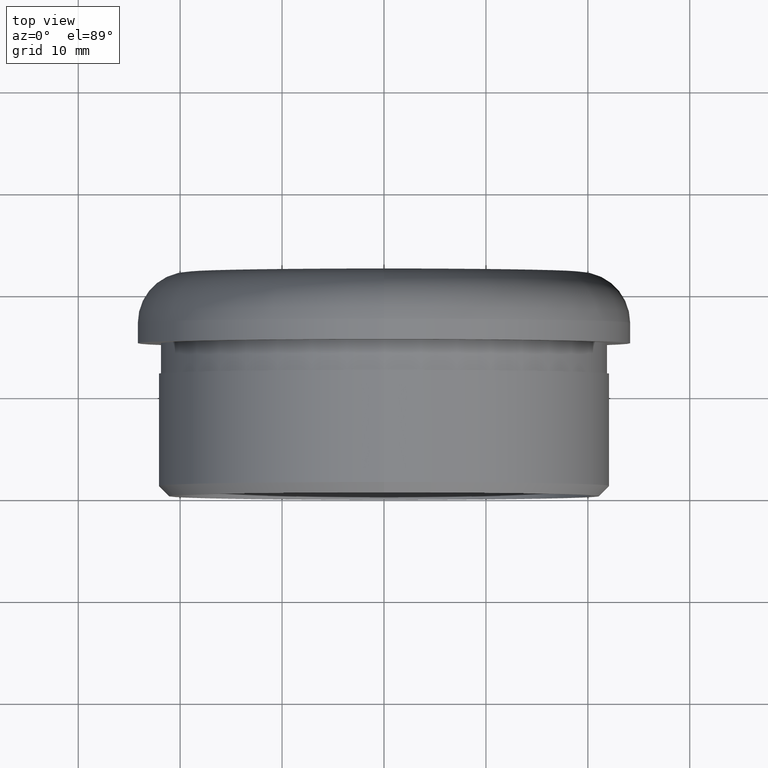
[diagram: clean part render]
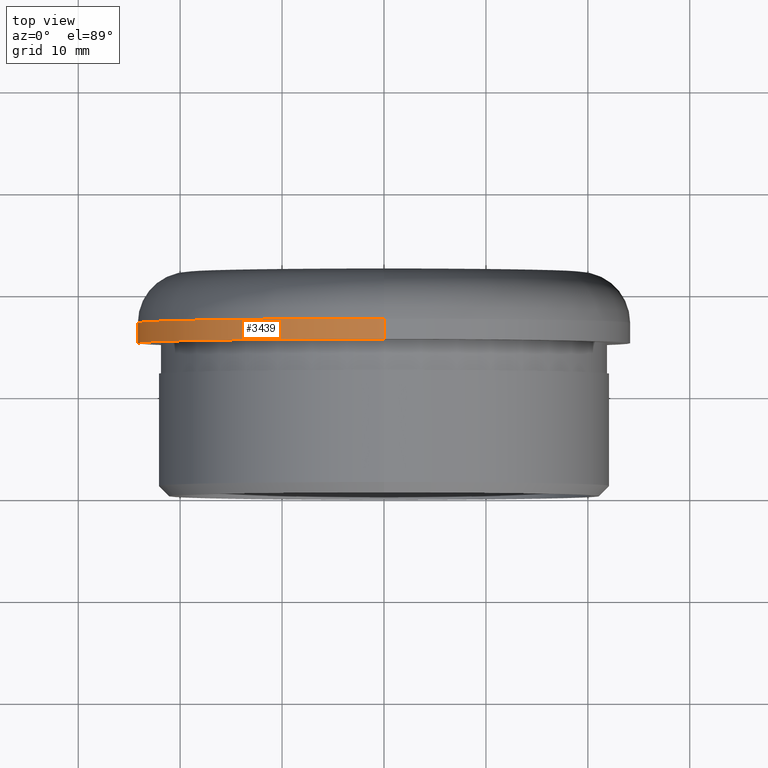
[diagram: same view with one face highlighted and labeled with its STEP entity id]
A machine part, top view. The second image highlights one B-rep face of the part: STEP entity #3439.
In plain terms, the highlighted cylindrical surface (partial cylindrical patch) has radius 24.15 mm, axis along (-0, -1, -0).
Its self-contained STEP definition (entity closure, byte-faithful):
#279 = ORIENTED_EDGE ( 'NONE', *, *, #1708, .F. ) ;
#734 = VECTOR ( 'NONE', #5471, 1000.000000000000000 ) ;
#739 = DIRECTION ( 'NONE',  ( 0.0000000000000000000, 0.0000000000000000000, -1.000000000000000000 ) ) ;
#860 = DIRECTION ( 'NONE',  ( -0.0000000000000000000, -1.000000000000000000, -0.0000000000000000000 ) ) ;
#1017 = CARTESIAN_POINT ( 'NONE',  ( 0.0000000000000000000, 16.99999999999999600, -24.15000000000000600 ) ) ;
#1549 = EDGE_CURVE ( 'NONE', #7961, #4033, #12061, .T. ) ;
#1708 = EDGE_CURVE ( 'NONE', #4033, #4985, #5677, .T. ) ;
#1844 = CARTESIAN_POINT ( 'NONE',  ( 0.0000000000000000000, 15.00000000000000000, 0.0000000000000000000 ) ) ;
#2728 = ORIENTED_EDGE ( 'NONE', *, *, #1549, .F. ) ;
#3052 = VERTEX_POINT ( 'NONE', #1017 ) ;
#3125 = CARTESIAN_POINT ( 'NONE',  ( 0.0000000000000000000, 20.19999999999999900, -24.15000000000000600 ) ) ;
#3439 = ADVANCED_FACE ( 'NONE', ( #11193 ), #4703, .T. ) ;
#3476 = EDGE_LOOP ( 'NONE', ( #2728, #14176, #4027, #279 ) ) ;
#3940 = VECTOR ( 'NONE', #7505, 1000.000000000000000 ) ;
#4027 = ORIENTED_EDGE ( 'NONE', *, *, #5646, .T. ) ;
#4033 = VERTEX_POINT ( 'NONE', #13451 ) ;
#4129 = DIRECTION ( 'NONE',  ( 0.0000000000000000000, 0.0000000000000000000, -1.000000000000000000 ) ) ;
#4386 = CARTESIAN_POINT ( 'NONE',  ( 2.957522019940858700E-015, 20.19999999999999900, 24.15000000000000600 ) ) ;
#4703 = CYLINDRICAL_SURFACE ( 'NONE', #11002, 24.15000000000000600 ) ;
#4882 = AXIS2_PLACEMENT_3D ( 'NONE', #1844, #12799, #739 ) ;
#4985 = VERTEX_POINT ( 'NONE', #7118 ) ;
#5471 = DIRECTION ( 'NONE',  ( -0.0000000000000000000, -1.000000000000000000, -0.0000000000000000000 ) ) ;
#5646 = EDGE_CURVE ( 'NONE', #3052, #4985, #10676, .T. ) ;
#5677 = CIRCLE ( 'NONE', #4882, 24.15000000000000600 ) ;
#7118 = CARTESIAN_POINT ( 'NONE',  ( 0.0000000000000000000, 15.00000000000000000, -24.15000000000000600 ) ) ;
#7505 = DIRECTION ( 'NONE',  ( -0.0000000000000000000, -1.000000000000000000, -0.0000000000000000000 ) ) ;
#7961 = VERTEX_POINT ( 'NONE', #13064 ) ;
#9543 = CARTESIAN_POINT ( 'NONE',  ( 0.0000000000000000000, 16.99999999999999600, 0.0000000000000000000 ) ) ;
#9762 = DIRECTION ( 'NONE',  ( -0.0000000000000000000, -1.000000000000000000, -0.0000000000000000000 ) ) ;
#10676 = LINE ( 'NONE', #3125, #3940 ) ;
#10882 = DIRECTION ( 'NONE',  ( 0.0000000000000000000, 0.0000000000000000000, -1.000000000000000000 ) ) ;
#11002 = AXIS2_PLACEMENT_3D ( 'NONE', #14157, #9762, #10882 ) ;
#11193 = FACE_OUTER_BOUND ( 'NONE', #3476, .T. ) ;
#11297 = AXIS2_PLACEMENT_3D ( 'NONE', #9543, #860, #4129 ) ;
#11317 = CIRCLE ( 'NONE', #11297, 24.15000000000000600 ) ;
#11817 = EDGE_CURVE ( 'NONE', #7961, #3052, #11317, .T. ) ;
#12061 = LINE ( 'NONE', #4386, #734 ) ;
#12799 = DIRECTION ( 'NONE',  ( -0.0000000000000000000, -1.000000000000000000, -0.0000000000000000000 ) ) ;
#13064 = CARTESIAN_POINT ( 'NONE',  ( 2.957522019940858700E-015, 16.99999999999999600, 24.15000000000000600 ) ) ;
#13451 = CARTESIAN_POINT ( 'NONE',  ( 2.957522019940858700E-015, 15.00000000000000000, 24.15000000000000600 ) ) ;
#14157 = CARTESIAN_POINT ( 'NONE',  ( 0.0000000000000000000, 20.19999999999999900, 0.0000000000000000000 ) ) ;
#14176 = ORIENTED_EDGE ( 'NONE', *, *, #11817, .T. ) ;